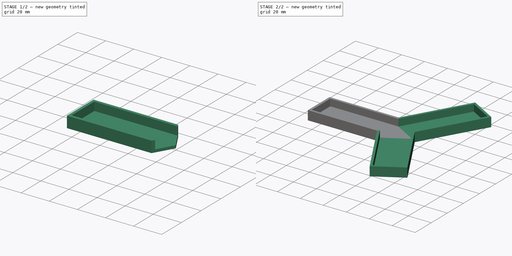
[diagram: build sequence overview — one tinted view per stage of 2, left to right]
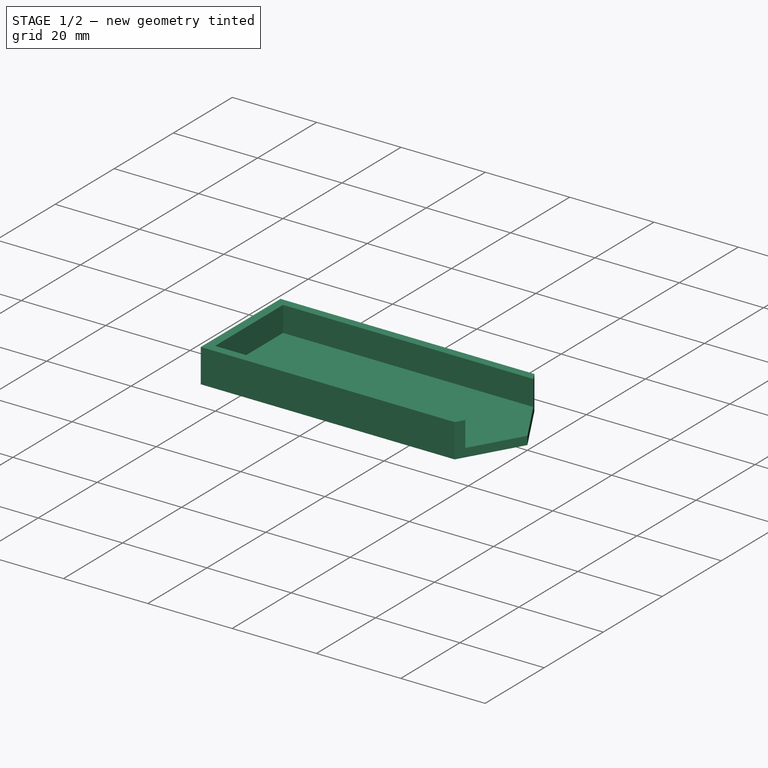
[diagram: stage 1 of 2 — iso view after this stage's code; geometry added in this stage tinted green]
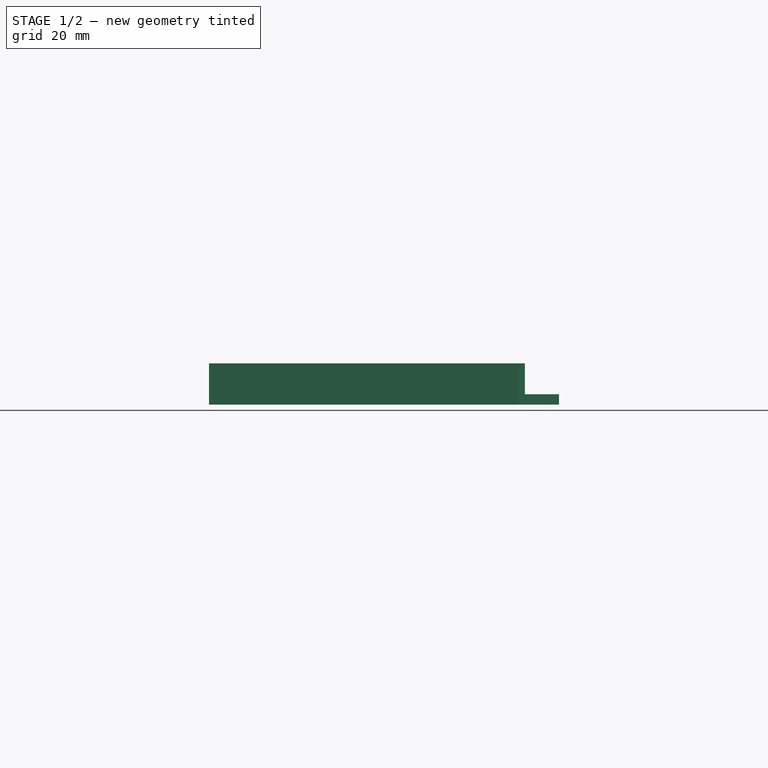
[diagram: stage 1 of 2 — front view after this stage's code; geometry added in this stage tinted green]
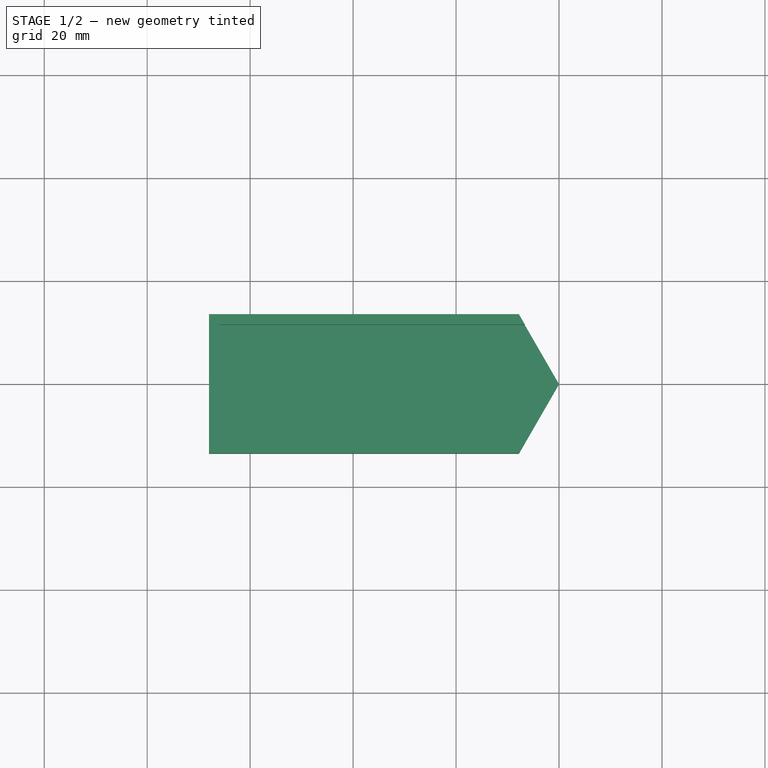
[diagram: stage 1 of 2 — top view after this stage's code; geometry added in this stage tinted green]
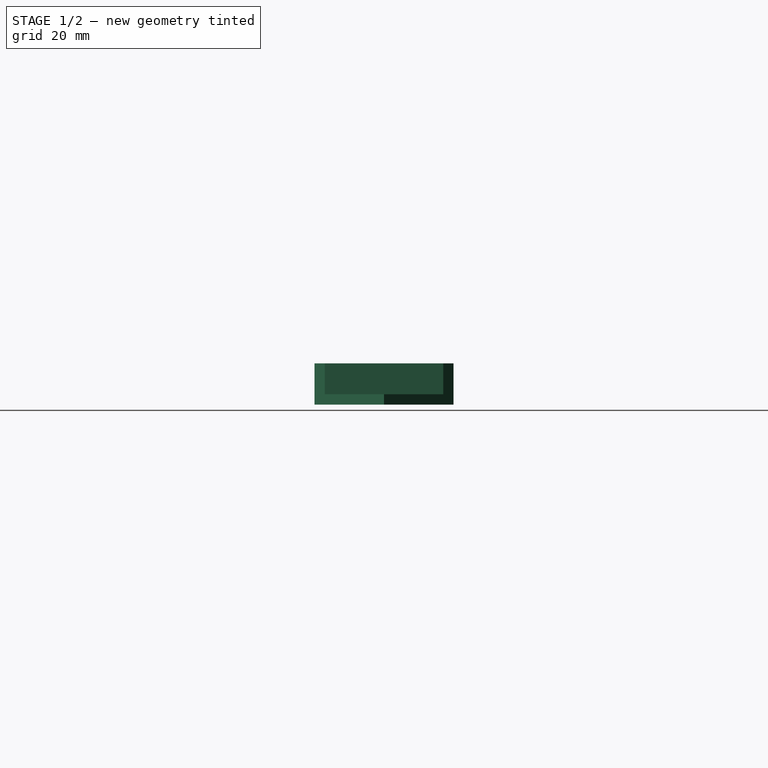
[diagram: stage 1 of 2 — right view after this stage's code; geometry added in this stage tinted green]
FCSTD DOCUMENT  (FreeCAD 0.16R6712 (Git))
Label: gripper2a
License: All rights reserved
LicenseURL: http://en.wikipedia.org/wiki/All_rights_reserved
objects: Sketcher::SketchObject×2, PartDesign::Pad×2, Part::MultiFuse×1, Part::FeaturePython×1
note: 8 computed .brp shape members not serialized (recipe doc carries the construction recipe); baked Part::Feature solids carry a one-line shape summary decoded from their .brp

FEATURE [Sketcher::SketchObject] Sketch
  sketch-geometry (6):
    g0: LineSegment StartX=0 StartY=0 StartZ=0 EndX=-7.79423 EndY=13.5 EndZ=0
    g1: LineSegment StartX=-7.79423 StartY=13.5 StartZ=0 EndX=-68 EndY=13.5 EndZ=0
    g2: LineSegment StartX=-68 StartY=13.5 StartZ=0 EndX=-68 EndY=-13.5 EndZ=0
    g3: LineSegment StartX=-68 StartY=-13.5 StartZ=0 EndX=-7.79423 EndY=-13.5 EndZ=0
    g4: LineSegment StartX=-7.79423 StartY=-13.5 StartZ=0 EndX=0 EndY=0 EndZ=0
    g5: LineSegment [constr] StartX=-7.79423 StartY=13.5 StartZ=0 EndX=-7.79423 EndY=-13.5 EndZ=0
  constraints (16):
    c: Coincident(g-1,g0)
    c: Coincident(g0,g1)
    c: Horizontal(g1)
    c: Coincident(g1,g2)
    c: Vertical(g2)
    c: Coincident(g2,g3)
    c: Horizontal(g3)
    c: Coincident(g3,g4)
    c: Coincident(g4,g0)
    c: Coincident(g5,g0)
    c: Coincident(g5,g3)
    c: Vertical(g5)
    c: Angle(g0,g4) = 2.0944
    c: DistanceX(g1,g-1) = 68
    c: Symmetric(g1,g2,g-1)
    c: DistanceY(g-1,g0) = 13.5
FEATURE [PartDesign::Pad] Pad
  Length = 2
  Length2 = 100
  Sketch = -> Sketch
  Type = 0
FEATURE [Sketcher::SketchObject] Sketch002
  sketch-geometry (10):
    g0: LineSegment StartX=-6.63953 StartY=11.5 StartZ=0 EndX=-7.79423 EndY=13.5 EndZ=0
    g1: LineSegment StartX=-7.79423 StartY=13.5 StartZ=0 EndX=-68 EndY=13.5 EndZ=0
    g2: LineSegment StartX=-68 StartY=13.5 StartZ=0 EndX=-68 EndY=-13.5 EndZ=0
    g3: LineSegment StartX=-68 StartY=-13.5 StartZ=0 EndX=-7.79423 EndY=-13.5 EndZ=0
    g4: LineSegment StartX=-6.63953 StartY=-11.5 StartZ=0 EndX=-66 EndY=-11.5 EndZ=0
    g5: LineSegment StartX=-66 StartY=-11.5 StartZ=0 EndX=-66 EndY=11.5 EndZ=0
    g6: LineSegment StartX=-66 StartY=11.5 StartZ=0 EndX=-6.63953 EndY=11.5 EndZ=0
    g7: LineSegment StartX=-6.63953 StartY=-11.5 StartZ=0 EndX=-7.79423 EndY=-13.5 EndZ=0
    g8: LineSegment [constr] StartX=-6.63953 StartY=11.5 StartZ=0 EndX=0 EndY=0 EndZ=0
    g9: LineSegment [constr] StartX=0 StartY=0 StartZ=0 EndX=-6.63953 EndY=-11.5 EndZ=0
  constraints (26):
    c: Coincident(g0,g1)
    c: Horizontal(g1)
    c: Coincident(g1,g2)
    c: Vertical(g2)
    c: Coincident(g2,g3)
    c: Horizontal(g3)
    c: Horizontal(g4)
    c: Vertical(g5)
    c: Coincident(g5,g6)
    c: Coincident(g6,g0)
    c: Horizontal(g6)
    c: Coincident(g5,g4)
    c: Coincident(g7,g4)
    c: Coincident(g7,g3)
    c: Coincident(g8,g0)
    c: Coincident(g9,g-1)
    c: Coincident(g9,g4)
    c: Coincident(g8,g-1)
    c: Symmetric(g0,g3,g-1)
    c: Symmetric(g0,g4,g-1)
    c: Parallel(g0,g8)
    c: DistanceY(g4,g-1) = 11.5
    c: DistanceY(g2,g-1) = 13.5
    c: Angle(g8,g9) = 2.0944
    c: DistanceX(g1,g5) = 2
    c: DistanceX(g1,g-1) = 68
FEATURE [PartDesign::Pad] Pad002
  Length = 8
  Length2 = 100
  Sketch = -> Sketch002
  Type = 0
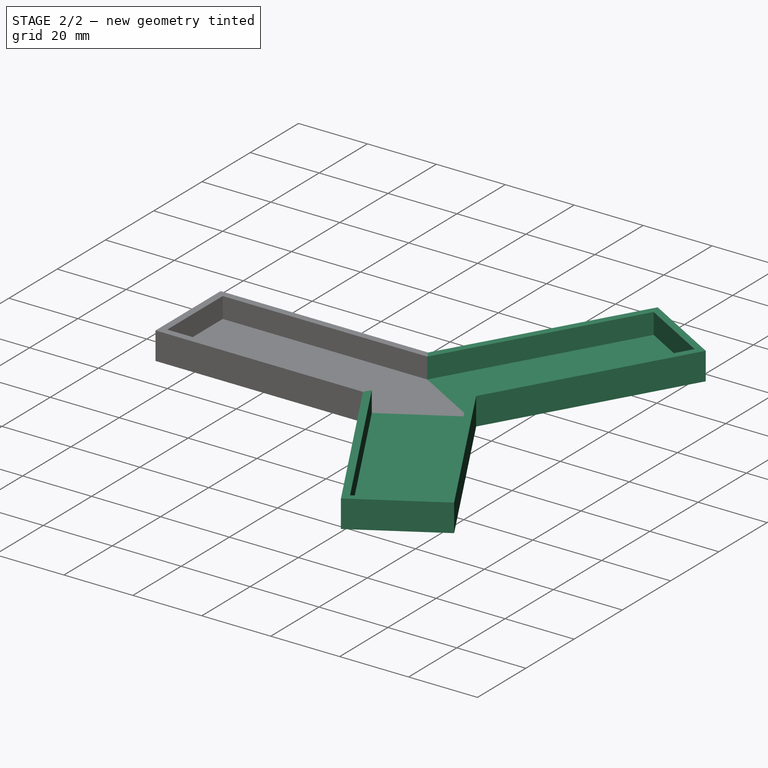
[diagram: stage 2 of 2 — iso view after this stage's code; geometry added in this stage tinted green]
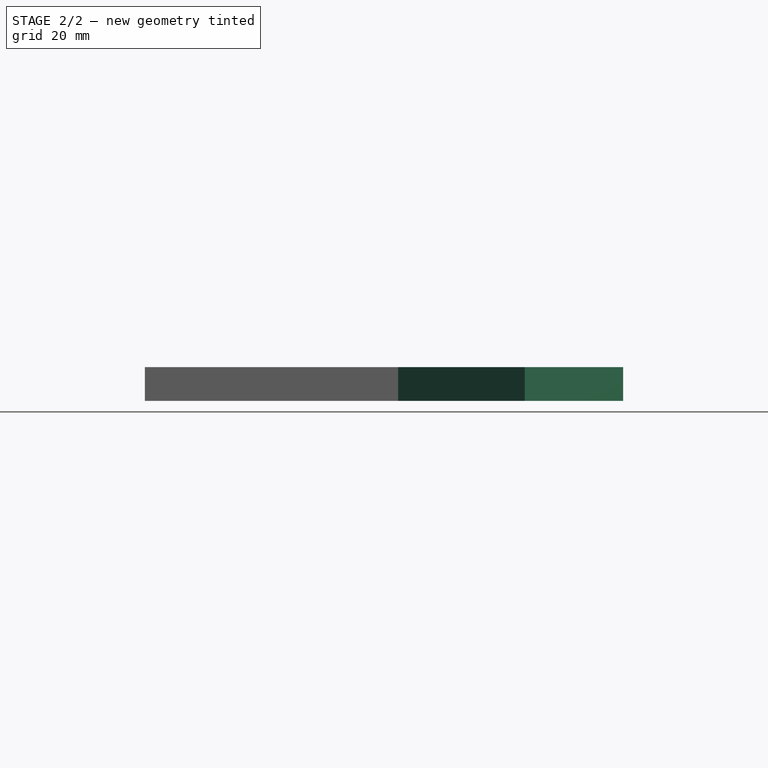
[diagram: stage 2 of 2 — front view after this stage's code; geometry added in this stage tinted green]
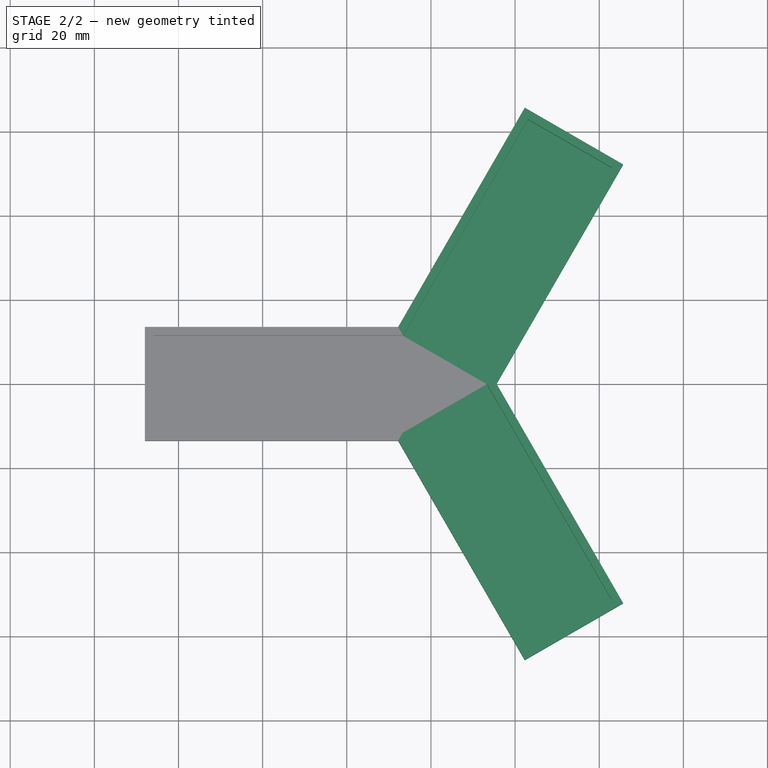
[diagram: stage 2 of 2 — top view after this stage's code; geometry added in this stage tinted green]
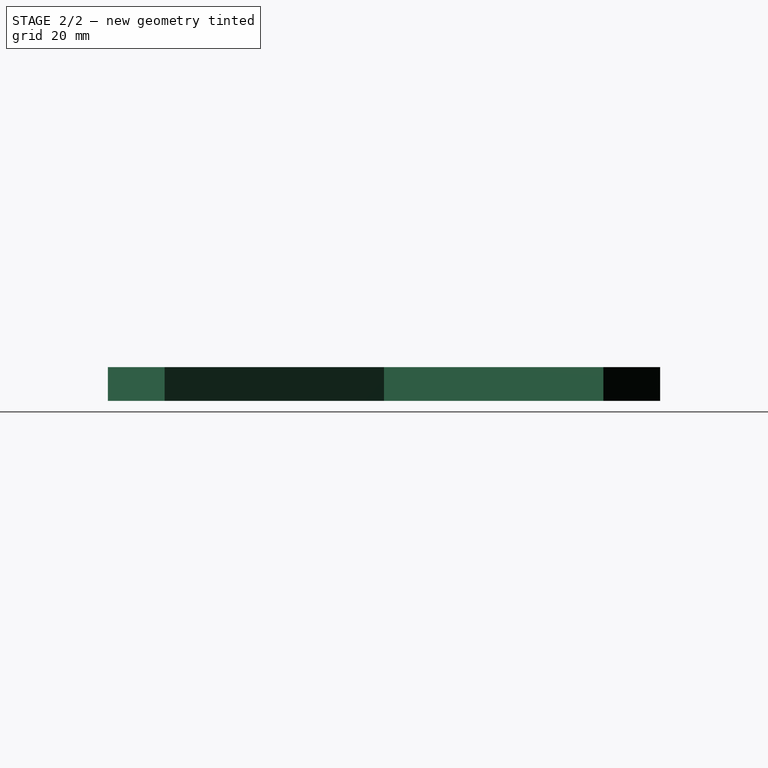
[diagram: stage 2 of 2 — right view after this stage's code; geometry added in this stage tinted green]
FEATURE [Part::MultiFuse] Fusion
  Shapes = -> [Pad,Pad002]
FEATURE [Part::FeaturePython] Array  # Draft array (typed FeaturePython)
  Angle = 360
  ArrayType = 1
  Axis = (0,0,1)
  Base = -> Fusion
  Center = (0,0,0)
  Fuse = true
  IntervalAxis = (0,0,0)
  IntervalX = (1,0,0)
  IntervalY = (0,1,0)
  IntervalZ = (0,0,0)
  NumberPolar = 3
  NumberX = 2
  NumberY = 2
  NumberZ = 1
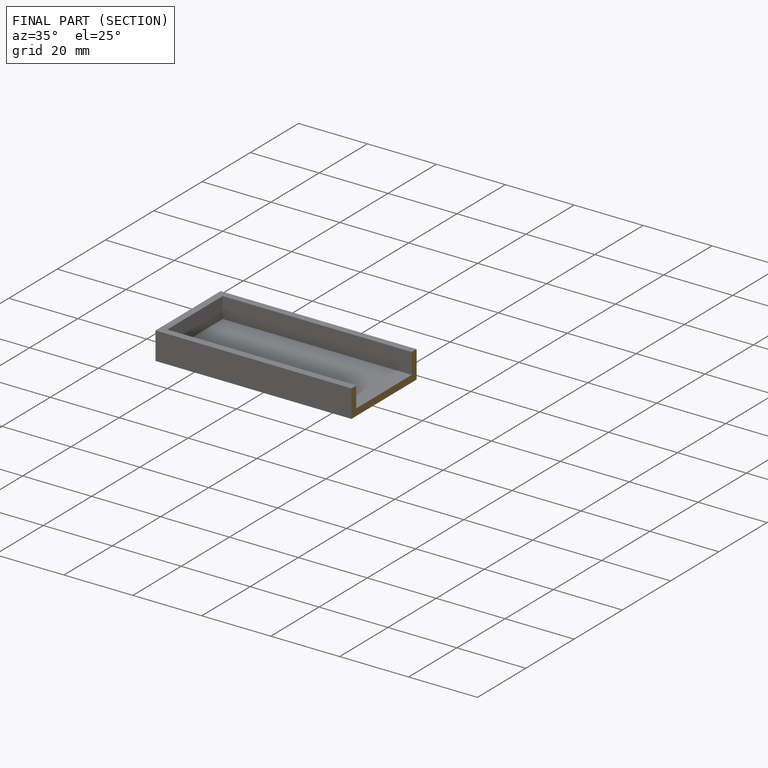
[diagram: finished part — half-section view (interior)]
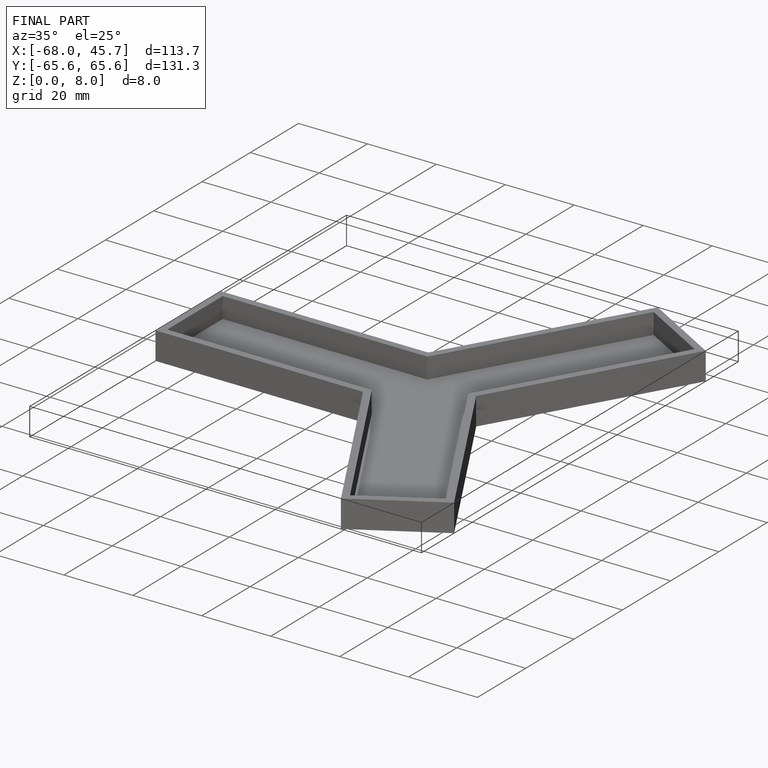
[diagram: finished part — iso view with bounding-box wireframe]
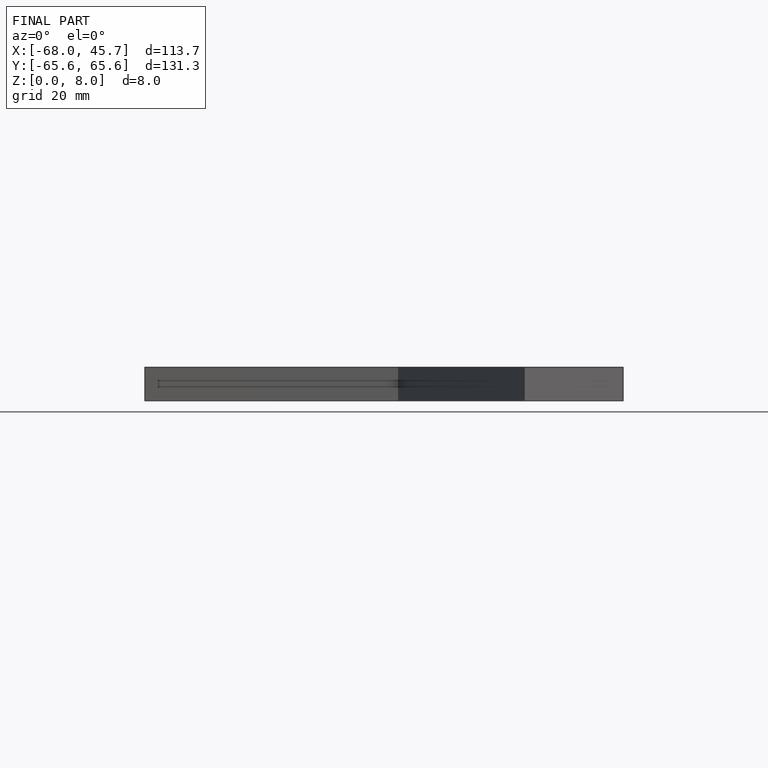
[diagram: finished part — front view with bounding-box wireframe]
